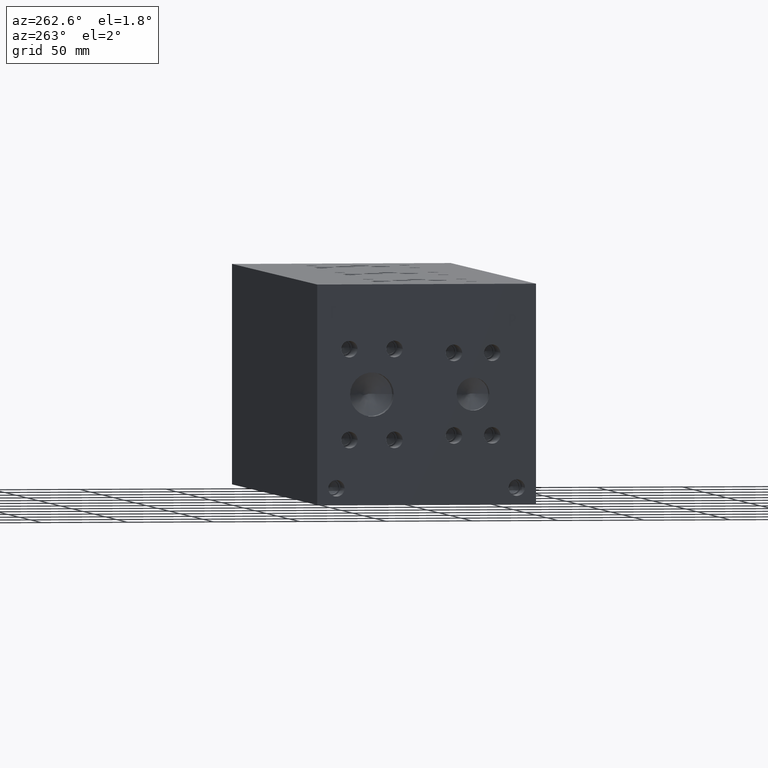
[diagram: clean part render]
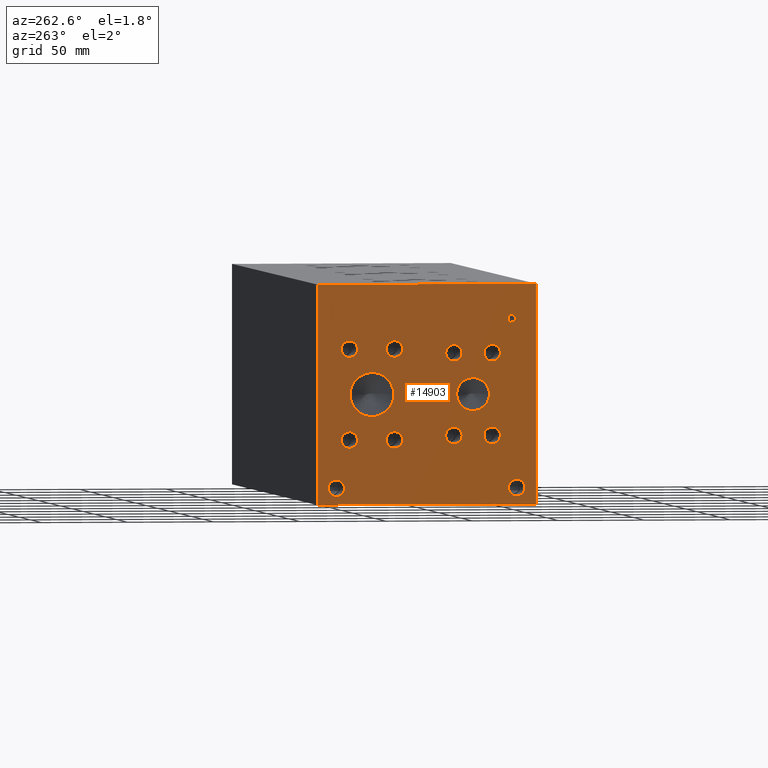
[diagram: same view with one face highlighted and labeled with its STEP entity id]
A machine part, auxiliary view. The second image highlights one B-rep face of the part: STEP entity #14903.
In plain terms, the highlighted planar face has unit normal (-1, 0, 0).
Its self-contained STEP definition (entity closure, byte-faithful):
#259=CIRCLE('',#15738,12.7);
#260=CIRCLE('',#15739,12.7);
#261=CIRCLE('',#15740,4.7625);
#262=CIRCLE('',#15741,4.7625);
#263=CIRCLE('',#15742,4.7625);
#264=CIRCLE('',#15743,4.7625);
#265=CIRCLE('',#15744,4.7625);
#266=CIRCLE('',#15745,4.7625);
#267=CIRCLE('',#15746,4.7625);
#268=CIRCLE('',#15747,4.7625);
#269=CIRCLE('',#15748,4.7625);
#270=CIRCLE('',#15749,4.7625);
#271=CIRCLE('',#15750,4.7625);
#272=CIRCLE('',#15751,4.7625);
#273=CIRCLE('',#15752,4.7625);
#274=CIRCLE('',#15753,4.7625);
#275=CIRCLE('',#15754,4.7625);
#276=CIRCLE('',#15755,4.7625);
#277=CIRCLE('',#15756,9.525);
#278=CIRCLE('',#15757,9.525);
#279=CIRCLE('',#15758,4.7625);
#280=CIRCLE('',#15759,4.7625);
#281=CIRCLE('',#15760,4.7625);
#282=CIRCLE('',#15761,4.7625);
#750=FACE_BOUND('',#2220,.T.);
#751=FACE_BOUND('',#2221,.T.);
#752=FACE_BOUND('',#2222,.T.);
#753=FACE_BOUND('',#2223,.T.);
#754=FACE_BOUND('',#2224,.T.);
#755=FACE_BOUND('',#2225,.T.);
#756=FACE_BOUND('',#2226,.T.);
#757=FACE_BOUND('',#2227,.T.);
#758=FACE_BOUND('',#2228,.T.);
#759=FACE_BOUND('',#2229,.T.);
#760=FACE_BOUND('',#2230,.T.);
#761=FACE_BOUND('',#2231,.T.);
#762=FACE_BOUND('',#2232,.T.);
#763=FACE_BOUND('',#2233,.T.);
#949=PLANE('',#15737);
#1391=FACE_OUTER_BOUND('',#2219,.T.);
#2219=EDGE_LOOP('',(#10104,#10105,#10106,#10107));
#2220=EDGE_LOOP('',(#10108,#10109));
#2221=EDGE_LOOP('',(#10110,#10111));
#2222=EDGE_LOOP('',(#10112,#10113));
#2223=EDGE_LOOP('',(#10114,#10115));
#2224=EDGE_LOOP('',(#10116,#10117));
#2225=EDGE_LOOP('',(#10118,#10119));
#2226=EDGE_LOOP('',(#10120,#10121));
#2227=EDGE_LOOP('',(#10122,#10123));
#2228=EDGE_LOOP('',(#10124,#10125));
#2229=EDGE_LOOP('',(#10126,#10127));
#2230=EDGE_LOOP('',(#10128,#10129));
#2231=EDGE_LOOP('',(#10130,#10131));
#2232=EDGE_LOOP('',(#10132,#10133,#10134,#10135,#10136,#10137,#10138,#10139));
#2233=EDGE_LOOP('',(#10140,#10141,#10142,#10143,#10144,#10145,#10146,#10147,
#10148));
#3234=LINE('',#20904,#4568);
#3237=LINE('',#20910,#4571);
#3240=LINE('',#20916,#4574);
#3243=LINE('',#20922,#4577);
#3246=LINE('',#20928,#4580);
#3250=LINE('',#20971,#4584);
#3251=LINE('',#20973,#4585);
#3252=LINE('',#20975,#4586);
#3253=LINE('',#20976,#4587);
#3254=LINE('',#21027,#4588);
#3255=LINE('',#21029,#4589);
#3256=LINE('',#21031,#4590);
#3257=LINE('',#21033,#4591);
#3258=LINE('',#21035,#4592);
#3259=LINE('',#21037,#4593);
#3260=LINE('',#21039,#4594);
#3261=LINE('',#21040,#4595);
#4568=VECTOR('',#17003,10.);
#4571=VECTOR('',#17008,10.);
#4574=VECTOR('',#17013,10.);
#4577=VECTOR('',#17018,10.);
#4580=VECTOR('',#17023,10.);
#4584=VECTOR('',#17031,10.);
#4585=VECTOR('',#17032,10.);
#4586=VECTOR('',#17033,10.);
#4587=VECTOR('',#17034,10.);
#4588=VECTOR('',#17083,10.);
#4589=VECTOR('',#17084,10.);
#4590=VECTOR('',#17085,10.);
#4591=VECTOR('',#17086,10.);
#4592=VECTOR('',#17087,10.);
#4593=VECTOR('',#17088,10.);
#4594=VECTOR('',#17089,10.);
#4595=VECTOR('',#17090,10.);
#5850=B_SPLINE_CURVE_WITH_KNOTS('',2,(#20871,#20872,#20873,#20874),
 .UNSPECIFIED.,.F.,.F.,(3,1,3),(0.,1.,2.),.UNSPECIFIED.);
#5852=B_SPLINE_CURVE_WITH_KNOTS('',2,(#20892,#20893,#20894,#20895),
 .UNSPECIFIED.,.F.,.F.,(3,1,3),(0.,1.,2.),.UNSPECIFIED.);
#5854=B_SPLINE_CURVE_WITH_KNOTS('',2,(#20941,#20942,#20943,#20944),
 .UNSPECIFIED.,.F.,.F.,(3,1,3),(0.,1.,2.),.UNSPECIFIED.);
#5856=B_SPLINE_CURVE_WITH_KNOTS('',2,(#20959,#20960,#20961,#20962),
 .UNSPECIFIED.,.F.,.F.,(3,1,3),(0.,1.,2.),.UNSPECIFIED.);
#6246=VERTEX_POINT('',#20869);
#6247=VERTEX_POINT('',#20870);
#6250=VERTEX_POINT('',#20891);
#6252=VERTEX_POINT('',#20903);
#6254=VERTEX_POINT('',#20909);
#6256=VERTEX_POINT('',#20915);
#6258=VERTEX_POINT('',#20921);
#6260=VERTEX_POINT('',#20927);
#6262=VERTEX_POINT('',#20940);
#6264=VERTEX_POINT('',#20969);
#6265=VERTEX_POINT('',#20970);
#6266=VERTEX_POINT('',#20972);
#6267=VERTEX_POINT('',#20974);
#6268=VERTEX_POINT('',#20977);
#6269=VERTEX_POINT('',#20978);
#6270=VERTEX_POINT('',#20981);
#6271=VERTEX_POINT('',#20982);
#6272=VERTEX_POINT('',#20985);
#6273=VERTEX_POINT('',#20986);
#6274=VERTEX_POINT('',#20989);
#6275=VERTEX_POINT('',#20990);
#6276=VERTEX_POINT('',#20993);
#6277=VERTEX_POINT('',#20994);
#6278=VERTEX_POINT('',#20997);
#6279=VERTEX_POINT('',#20998);
#6280=VERTEX_POINT('',#21001);
#6281=VERTEX_POINT('',#21002);
#6282=VERTEX_POINT('',#21005);
#6283=VERTEX_POINT('',#21006);
#6284=VERTEX_POINT('',#21009);
#6285=VERTEX_POINT('',#21010);
#6286=VERTEX_POINT('',#21013);
#6287=VERTEX_POINT('',#21014);
#6288=VERTEX_POINT('',#21017);
#6289=VERTEX_POINT('',#21018);
#6290=VERTEX_POINT('',#21021);
#6291=VERTEX_POINT('',#21022);
#6292=VERTEX_POINT('',#21025);
#6293=VERTEX_POINT('',#21026);
#6294=VERTEX_POINT('',#21028);
#6295=VERTEX_POINT('',#21030);
#6296=VERTEX_POINT('',#21032);
#6297=VERTEX_POINT('',#21034);
#6298=VERTEX_POINT('',#21036);
#6299=VERTEX_POINT('',#21038);
#7817=EDGE_CURVE('',#6246,#6247,#5850,.T.);
#7821=EDGE_CURVE('',#6250,#6246,#5852,.T.);
#7824=EDGE_CURVE('',#6252,#6250,#3234,.T.);
#7827=EDGE_CURVE('',#6254,#6252,#3237,.T.);
#7830=EDGE_CURVE('',#6256,#6254,#3240,.T.);
#7833=EDGE_CURVE('',#6258,#6256,#3243,.T.);
#7836=EDGE_CURVE('',#6260,#6258,#3246,.T.);
#7839=EDGE_CURVE('',#6262,#6260,#5854,.T.);
#7842=EDGE_CURVE('',#6247,#6262,#5856,.T.);
#7844=EDGE_CURVE('',#6264,#6265,#3250,.T.);
#7845=EDGE_CURVE('',#6265,#6266,#3251,.T.);
#7846=EDGE_CURVE('',#6267,#6266,#3252,.T.);
#7847=EDGE_CURVE('',#6264,#6267,#3253,.T.);
#7848=EDGE_CURVE('',#6268,#6269,#259,.T.);
#7849=EDGE_CURVE('',#6269,#6268,#260,.T.);
#7850=EDGE_CURVE('',#6270,#6271,#261,.T.);
#7851=EDGE_CURVE('',#6271,#6270,#262,.T.);
#7852=EDGE_CURVE('',#6272,#6273,#263,.T.);
#7853=EDGE_CURVE('',#6273,#6272,#264,.T.);
#7854=EDGE_CURVE('',#6274,#6275,#265,.T.);
#7855=EDGE_CURVE('',#6275,#6274,#266,.T.);
#7856=EDGE_CURVE('',#6276,#6277,#267,.T.);
#7857=EDGE_CURVE('',#6277,#6276,#268,.T.);
#7858=EDGE_CURVE('',#6278,#6279,#269,.T.);
#7859=EDGE_CURVE('',#6279,#6278,#270,.T.);
#7860=EDGE_CURVE('',#6280,#6281,#271,.T.);
#7861=EDGE_CURVE('',#6281,#6280,#272,.T.);
#7862=EDGE_CURVE('',#6282,#6283,#273,.T.);
#7863=EDGE_CURVE('',#6283,#6282,#274,.T.);
#7864=EDGE_CURVE('',#6284,#6285,#275,.T.);
#7865=EDGE_CURVE('',#6285,#6284,#276,.T.);
#7866=EDGE_CURVE('',#6286,#6287,#277,.T.);
#7867=EDGE_CURVE('',#6287,#6286,#278,.T.);
#7868=EDGE_CURVE('',#6288,#6289,#279,.T.);
#7869=EDGE_CURVE('',#6289,#6288,#280,.T.);
#7870=EDGE_CURVE('',#6290,#6291,#281,.T.);
#7871=EDGE_CURVE('',#6291,#6290,#282,.T.);
#7872=EDGE_CURVE('',#6292,#6293,#3254,.T.);
#7873=EDGE_CURVE('',#6293,#6294,#3255,.T.);
#7874=EDGE_CURVE('',#6294,#6295,#3256,.T.);
#7875=EDGE_CURVE('',#6295,#6296,#3257,.T.);
#7876=EDGE_CURVE('',#6296,#6297,#3258,.T.);
#7877=EDGE_CURVE('',#6297,#6298,#3259,.T.);
#7878=EDGE_CURVE('',#6298,#6299,#3260,.T.);
#7879=EDGE_CURVE('',#6299,#6292,#3261,.T.);
#10104=ORIENTED_EDGE('',*,*,#7844,.T.);
#10105=ORIENTED_EDGE('',*,*,#7845,.T.);
#10106=ORIENTED_EDGE('',*,*,#7846,.F.);
#10107=ORIENTED_EDGE('',*,*,#7847,.F.);
#10108=ORIENTED_EDGE('',*,*,#7848,.T.);
#10109=ORIENTED_EDGE('',*,*,#7849,.T.);
#10110=ORIENTED_EDGE('',*,*,#7850,.T.);
#10111=ORIENTED_EDGE('',*,*,#7851,.T.);
#10112=ORIENTED_EDGE('',*,*,#7852,.T.);
#10113=ORIENTED_EDGE('',*,*,#7853,.T.);
#10114=ORIENTED_EDGE('',*,*,#7854,.T.);
#10115=ORIENTED_EDGE('',*,*,#7855,.T.);
#10116=ORIENTED_EDGE('',*,*,#7856,.T.);
#10117=ORIENTED_EDGE('',*,*,#7857,.T.);
#10118=ORIENTED_EDGE('',*,*,#7858,.T.);
#10119=ORIENTED_EDGE('',*,*,#7859,.T.);
#10120=ORIENTED_EDGE('',*,*,#7860,.T.);
#10121=ORIENTED_EDGE('',*,*,#7861,.T.);
#10122=ORIENTED_EDGE('',*,*,#7862,.T.);
#10123=ORIENTED_EDGE('',*,*,#7863,.T.);
#10124=ORIENTED_EDGE('',*,*,#7864,.T.);
#10125=ORIENTED_EDGE('',*,*,#7865,.T.);
#10126=ORIENTED_EDGE('',*,*,#7866,.T.);
#10127=ORIENTED_EDGE('',*,*,#7867,.T.);
#10128=ORIENTED_EDGE('',*,*,#7868,.T.);
#10129=ORIENTED_EDGE('',*,*,#7869,.T.);
#10130=ORIENTED_EDGE('',*,*,#7870,.T.);
#10131=ORIENTED_EDGE('',*,*,#7871,.T.);
#10132=ORIENTED_EDGE('',*,*,#7872,.T.);
#10133=ORIENTED_EDGE('',*,*,#7873,.T.);
#10134=ORIENTED_EDGE('',*,*,#7874,.T.);
#10135=ORIENTED_EDGE('',*,*,#7875,.T.);
#10136=ORIENTED_EDGE('',*,*,#7876,.T.);
#10137=ORIENTED_EDGE('',*,*,#7877,.T.);
#10138=ORIENTED_EDGE('',*,*,#7878,.T.);
#10139=ORIENTED_EDGE('',*,*,#7879,.T.);
#10140=ORIENTED_EDGE('',*,*,#7817,.T.);
#10141=ORIENTED_EDGE('',*,*,#7842,.T.);
#10142=ORIENTED_EDGE('',*,*,#7839,.T.);
#10143=ORIENTED_EDGE('',*,*,#7836,.T.);
#10144=ORIENTED_EDGE('',*,*,#7833,.T.);
#10145=ORIENTED_EDGE('',*,*,#7830,.T.);
#10146=ORIENTED_EDGE('',*,*,#7827,.T.);
#10147=ORIENTED_EDGE('',*,*,#7824,.T.);
#10148=ORIENTED_EDGE('',*,*,#7821,.T.);
#14903=ADVANCED_FACE('',(#1391,#750,#751,#752,#753,#754,#755,#756,#757,
#758,#759,#760,#761,#762,#763),#949,.T.);
#15737=AXIS2_PLACEMENT_3D('',#20968,#17029,#17030);
#15738=AXIS2_PLACEMENT_3D('',#20979,#17035,#17036);
#15739=AXIS2_PLACEMENT_3D('',#20980,#17037,#17038);
#15740=AXIS2_PLACEMENT_3D('',#20983,#17039,#17040);
#15741=AXIS2_PLACEMENT_3D('',#20984,#17041,#17042);
#15742=AXIS2_PLACEMENT_3D('',#20987,#17043,#17044);
#15743=AXIS2_PLACEMENT_3D('',#20988,#17045,#17046);
#15744=AXIS2_PLACEMENT_3D('',#20991,#17047,#17048);
#15745=AXIS2_PLACEMENT_3D('',#20992,#17049,#17050);
#15746=AXIS2_PLACEMENT_3D('',#20995,#17051,#17052);
#15747=AXIS2_PLACEMENT_3D('',#20996,#17053,#17054);
#15748=AXIS2_PLACEMENT_3D('',#20999,#17055,#17056);
#15749=AXIS2_PLACEMENT_3D('',#21000,#17057,#17058);
#15750=AXIS2_PLACEMENT_3D('',#21003,#17059,#17060);
#15751=AXIS2_PLACEMENT_3D('',#21004,#17061,#17062);
#15752=AXIS2_PLACEMENT_3D('',#21007,#17063,#17064);
#15753=AXIS2_PLACEMENT_3D('',#21008,#17065,#17066);
#15754=AXIS2_PLACEMENT_3D('',#21011,#17067,#17068);
#15755=AXIS2_PLACEMENT_3D('',#21012,#17069,#17070);
#15756=AXIS2_PLACEMENT_3D('',#21015,#17071,#17072);
#15757=AXIS2_PLACEMENT_3D('',#21016,#17073,#17074);
#15758=AXIS2_PLACEMENT_3D('',#21019,#17075,#17076);
#15759=AXIS2_PLACEMENT_3D('',#21020,#17077,#17078);
#15760=AXIS2_PLACEMENT_3D('',#21023,#17079,#17080);
#15761=AXIS2_PLACEMENT_3D('',#21024,#17081,#17082);
#17003=DIRECTION('',(0.,-1.,0.));
#17008=DIRECTION('',(0.,-3.14708893596576E-15,1.));
#17013=DIRECTION('',(0.,1.,0.));
#17018=DIRECTION('',(0.,3.75218139805001E-15,-1.));
#17023=DIRECTION('',(0.,1.,0.));
#17029=DIRECTION('center_axis',(-1.,0.,0.));
#17030=DIRECTION('ref_axis',(0.,-1.,0.));
#17031=DIRECTION('',(0.,-1.,0.));
#17032=DIRECTION('',(0.,0.,1.));
#17033=DIRECTION('',(0.,-1.,0.));
#17034=DIRECTION('',(0.,0.,1.));
#17035=DIRECTION('center_axis',(1.,0.,0.));
#17036=DIRECTION('ref_axis',(0.,1.,0.));
#17037=DIRECTION('center_axis',(1.,0.,0.));
#17038=DIRECTION('ref_axis',(0.,1.,0.));
#17039=DIRECTION('center_axis',(1.,0.,0.));
#17040=DIRECTION('ref_axis',(0.,1.,0.));
#17041=DIRECTION('center_axis',(1.,0.,0.));
#17042=DIRECTION('ref_axis',(0.,1.,0.));
#17043=DIRECTION('center_axis',(1.,0.,0.));
#17044=DIRECTION('ref_axis',(0.,1.,0.));
#17045=DIRECTION('center_axis',(1.,0.,0.));
#17046=DIRECTION('ref_axis',(0.,1.,0.));
#17047=DIRECTION('center_axis',(1.,0.,0.));
#17048=DIRECTION('ref_axis',(0.,1.,0.));
#17049=DIRECTION('center_axis',(1.,0.,0.));
#17050=DIRECTION('ref_axis',(0.,1.,0.));
#17051=DIRECTION('center_axis',(1.,0.,0.));
#17052=DIRECTION('ref_axis',(0.,1.,0.));
#17053=DIRECTION('center_axis',(1.,0.,0.));
#17054=DIRECTION('ref_axis',(0.,1.,0.));
#17055=DIRECTION('center_axis',(1.,0.,0.));
#17056=DIRECTION('ref_axis',(0.,1.,0.));
#17057=DIRECTION('center_axis',(1.,0.,0.));
#17058=DIRECTION('ref_axis',(0.,1.,0.));
#17059=DIRECTION('center_axis',(1.,0.,0.));
#17060=DIRECTION('ref_axis',(0.,1.,0.));
#17061=DIRECTION('center_axis',(1.,0.,0.));
#17062=DIRECTION('ref_axis',(0.,1.,0.));
#17063=DIRECTION('center_axis',(1.,0.,0.));
#17064=DIRECTION('ref_axis',(0.,1.,0.));
#17065=DIRECTION('center_axis',(1.,0.,0.));
#17066=DIRECTION('ref_axis',(0.,1.,0.));
#17067=DIRECTION('center_axis',(1.,0.,0.));
#17068=DIRECTION('ref_axis',(0.,1.,0.));
#17069=DIRECTION('center_axis',(1.,0.,0.));
#17070=DIRECTION('ref_axis',(0.,1.,0.));
#17071=DIRECTION('center_axis',(1.,0.,0.));
#17072=DIRECTION('ref_axis',(0.,1.,0.));
#17073=DIRECTION('center_axis',(1.,0.,0.));
#17074=DIRECTION('ref_axis',(0.,1.,0.));
#17075=DIRECTION('center_axis',(1.,0.,0.));
#17076=DIRECTION('ref_axis',(0.,1.,0.));
#17077=DIRECTION('center_axis',(1.,0.,0.));
#17078=DIRECTION('ref_axis',(0.,1.,0.));
#17079=DIRECTION('center_axis',(1.,0.,0.));
#17080=DIRECTION('ref_axis',(0.,1.,0.));
#17081=DIRECTION('center_axis',(1.,0.,0.));
#17082=DIRECTION('ref_axis',(0.,1.,0.));
#17083=DIRECTION('',(0.,1.,0.));
#17084=DIRECTION('',(0.,-3.17280044688052E-15,1.));
#17085=DIRECTION('',(0.,1.,8.33818088455555E-15));
#17086=DIRECTION('',(0.,-2.36438827822332E-14,1.));
#17087=DIRECTION('',(0.,-1.,0.));
#17088=DIRECTION('',(0.,2.36438827822327E-14,-1.));
#17089=DIRECTION('',(0.,1.,0.));
#17090=DIRECTION('',(0.,3.17280044688052E-15,-1.));
#20869=CARTESIAN_POINT('',(0.,12.5078327976406,108.747568143971));
#20870=CARTESIAN_POINT('',(0.,11.751390345468,107.229537372604));
#20871=CARTESIAN_POINT('Ctrl Pts',(0.,12.5078327976406,108.747568143971));
#20872=CARTESIAN_POINT('Ctrl Pts',(0.,12.1527679731514,108.505712393956));
#20873=CARTESIAN_POINT('Ctrl Pts',(0.,11.751390345468,107.759561675827));
#20874=CARTESIAN_POINT('Ctrl Pts',(0.,11.751390345468,107.229537372604));
#20891=CARTESIAN_POINT('',(0.,14.1699478456117,109.143799904633));
#20892=CARTESIAN_POINT('Ctrl Pts',(0.,14.1699478456117,109.143799904633));
#20893=CARTESIAN_POINT('Ctrl Pts',(0.,13.6039024732376,109.143799904633));
#20894=CARTESIAN_POINT('Ctrl Pts',(0.,12.8114389519139,108.958548691856));
#20895=CARTESIAN_POINT('Ctrl Pts',(0.,12.5078327976406,108.747568143971));
#20903=CARTESIAN_POINT('',(0.,15.7651666223022,109.143799904633));
#20904=CARTESIAN_POINT('',(0.,71.3825833111511,109.143799904633));
#20909=CARTESIAN_POINT('',(0.,15.7651666223022,102.7938));
#20910=CARTESIAN_POINT('',(0.,15.7651666223024,51.3968999999998));
#20915=CARTESIAN_POINT('',(0.,14.9212444307627,102.7938));
#20916=CARTESIAN_POINT('',(0.,70.9606222153814,102.7938));
#20921=CARTESIAN_POINT('',(0.,14.9212444307627,105.160898829928));
#20922=CARTESIAN_POINT('',(0.,14.9212444307629,52.5804494149637));
#20927=CARTESIAN_POINT('',(0.,14.2059689147628,105.160898829928));
#20928=CARTESIAN_POINT('',(0.,70.6029844573814,105.160898829928));
#20940=CARTESIAN_POINT('',(0.,12.3071439837989,105.81956980869));
#20941=CARTESIAN_POINT('Ctrl Pts',(0.,12.3071439837989,105.81956980869));
#20942=CARTESIAN_POINT('Ctrl Pts',(0.,12.6364794731802,105.495380186331));
#20943=CARTESIAN_POINT('Ctrl Pts',(0.,13.5267144679139,105.160898829928));
#20944=CARTESIAN_POINT('Ctrl Pts',(0.,14.2059689147628,105.160898829928));
#20959=CARTESIAN_POINT('Ctrl Pts',(0.,11.751390345468,107.229537372604));
#20960=CARTESIAN_POINT('Ctrl Pts',(0.,11.751390345468,106.817868010877));
#20961=CARTESIAN_POINT('Ctrl Pts',(0.,12.0447047656982,106.076863159769));
#20962=CARTESIAN_POINT('Ctrl Pts',(0.,12.3071439837989,105.81956980869));
#20968=CARTESIAN_POINT('Origin',(0.,127.,0.));
#20969=CARTESIAN_POINT('',(0.,127.,0.));
#20970=CARTESIAN_POINT('',(0.,0.,0.));
#20971=CARTESIAN_POINT('',(0.,127.,0.));
#20972=CARTESIAN_POINT('',(0.,0.,127.));
#20973=CARTESIAN_POINT('',(0.,0.,0.));
#20974=CARTESIAN_POINT('',(0.,127.,127.));
#20975=CARTESIAN_POINT('',(0.,127.,127.));
#20976=CARTESIAN_POINT('',(0.,127.,0.));
#20977=CARTESIAN_POINT('',(0.,107.95,63.5));
#20978=CARTESIAN_POINT('',(0.,82.55,63.5));
#20979=CARTESIAN_POINT('Origin',(0.,95.25,63.5));
#20980=CARTESIAN_POINT('Origin',(0.,95.25,63.5));
#20981=CARTESIAN_POINT('',(0.,52.3875,87.2998));
#20982=CARTESIAN_POINT('',(0.,42.8625,87.2998));
#20983=CARTESIAN_POINT('Origin',(0.,47.625,87.2998));
#20984=CARTESIAN_POINT('Origin',(0.,47.625,87.2998));
#20985=CARTESIAN_POINT('',(0.,30.1879,39.7002));
#20986=CARTESIAN_POINT('',(0.,20.6629,39.7002));
#20987=CARTESIAN_POINT('Origin',(0.,25.4254,39.7002));
#20988=CARTESIAN_POINT('Origin',(0.,25.4254,39.7002));
#20989=CARTESIAN_POINT('',(0.,113.0935,37.3126));
#20990=CARTESIAN_POINT('',(0.,103.5685,37.3126));
#20991=CARTESIAN_POINT('Origin',(0.,108.331,37.3126));
#20992=CARTESIAN_POINT('Origin',(0.,108.331,37.3126));
#20993=CARTESIAN_POINT('',(0.,86.9315,89.6874));
#20994=CARTESIAN_POINT('',(0.,77.4065,89.6874));
#20995=CARTESIAN_POINT('Origin',(0.,82.169,89.6874));
#20996=CARTESIAN_POINT('Origin',(0.,82.169,89.6874));
#20997=CARTESIAN_POINT('',(0.,113.0935,89.69248));
#20998=CARTESIAN_POINT('',(0.,103.5685,89.69248));
#20999=CARTESIAN_POINT('Origin',(0.,108.331,89.69248));
#21000=CARTESIAN_POINT('Origin',(0.,108.331,89.69248));
#21001=CARTESIAN_POINT('',(0.,86.9315,37.30752));
#21002=CARTESIAN_POINT('',(0.,77.4065,37.30752));
#21003=CARTESIAN_POINT('Origin',(0.,82.169,37.30752));
#21004=CARTESIAN_POINT('Origin',(0.,82.169,37.30752));
#21005=CARTESIAN_POINT('',(0.,30.1879,87.2998));
#21006=CARTESIAN_POINT('',(0.,20.6629,87.2998));
#21007=CARTESIAN_POINT('Origin',(0.,25.4254,87.2998));
#21008=CARTESIAN_POINT('Origin',(0.,25.4254,87.2998));
#21009=CARTESIAN_POINT('',(0.,52.3875,39.7002));
#21010=CARTESIAN_POINT('',(0.,42.8625,39.7002));
#21011=CARTESIAN_POINT('Origin',(0.,47.625,39.7002));
#21012=CARTESIAN_POINT('Origin',(0.,47.625,39.7002));
#21013=CARTESIAN_POINT('',(0.,46.0502,63.5));
#21014=CARTESIAN_POINT('',(0.,27.0002,63.5));
#21015=CARTESIAN_POINT('Origin',(0.,36.5252,63.5));
#21016=CARTESIAN_POINT('Origin',(0.,36.5252,63.5));
#21017=CARTESIAN_POINT('',(0.,120.6373,9.52500000000001));
#21018=CARTESIAN_POINT('',(0.,111.1123,9.52500000000001));
#21019=CARTESIAN_POINT('Origin',(0.,115.8748,9.52500000000001));
#21020=CARTESIAN_POINT('Origin',(0.,115.8748,9.52500000000001));
#21021=CARTESIAN_POINT('',(0.,15.8877,9.52500000000001));
#21022=CARTESIAN_POINT('',(0.,6.3627,9.52500000000001));
#21023=CARTESIAN_POINT('Origin',(0.,11.1252,9.52500000000001));
#21024=CARTESIAN_POINT('Origin',(0.,11.1252,9.52500000000001));
#21025=CARTESIAN_POINT('',(0.,118.214234728547,107.8738));
#21026=CARTESIAN_POINT('',(0.,119.058156920087,107.8738));
#21027=CARTESIAN_POINT('',(0.,122.607117364274,107.8738));
#21028=CARTESIAN_POINT('',(0.,119.058156920087,113.472503319482));
#21029=CARTESIAN_POINT('',(0.,119.058156920087,53.9369));
#21030=CARTESIAN_POINT('',(0.,121.188545867022,113.472503319482));
#21031=CARTESIAN_POINT('',(0.,123.029078460043,113.472503319482));
#21032=CARTESIAN_POINT('',(0.,121.188545867022,114.223799904633));
#21033=CARTESIAN_POINT('',(0.,121.188545867023,56.7362516597407));
#21034=CARTESIAN_POINT('',(0.,116.083845781612,114.223799904633));
#21035=CARTESIAN_POINT('',(0.,124.094272933511,114.223799904633));
#21036=CARTESIAN_POINT('',(0.,116.083845781612,113.472503319482));
#21037=CARTESIAN_POINT('',(0.,116.083845781613,57.1118999523161));
#21038=CARTESIAN_POINT('',(0.,118.214234728547,113.472503319482));
#21039=CARTESIAN_POINT('',(0.,121.541922890806,113.472503319482));
#21040=CARTESIAN_POINT('',(0.,118.214234728547,56.7362516597407));